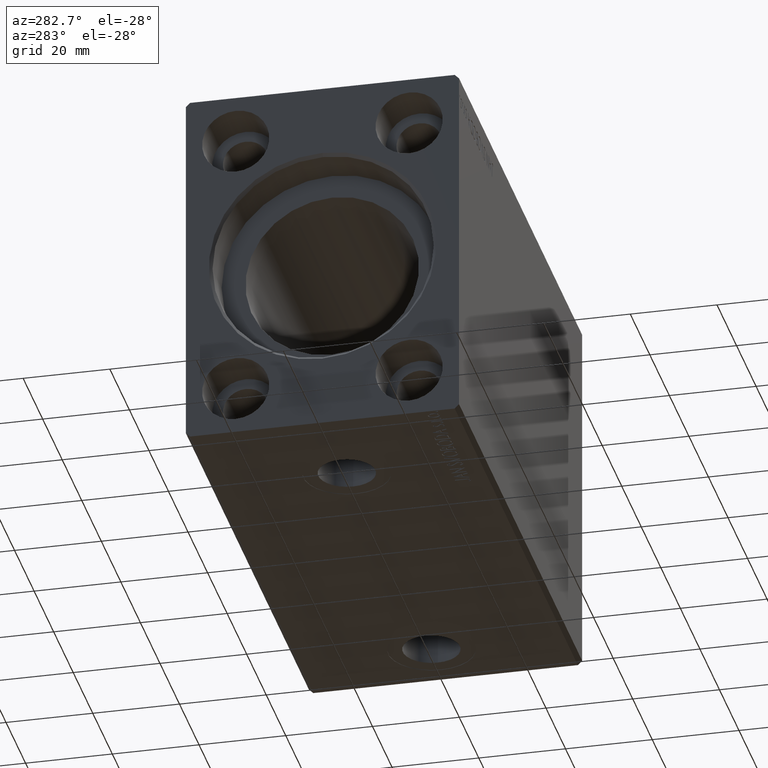
[diagram: clean part render]
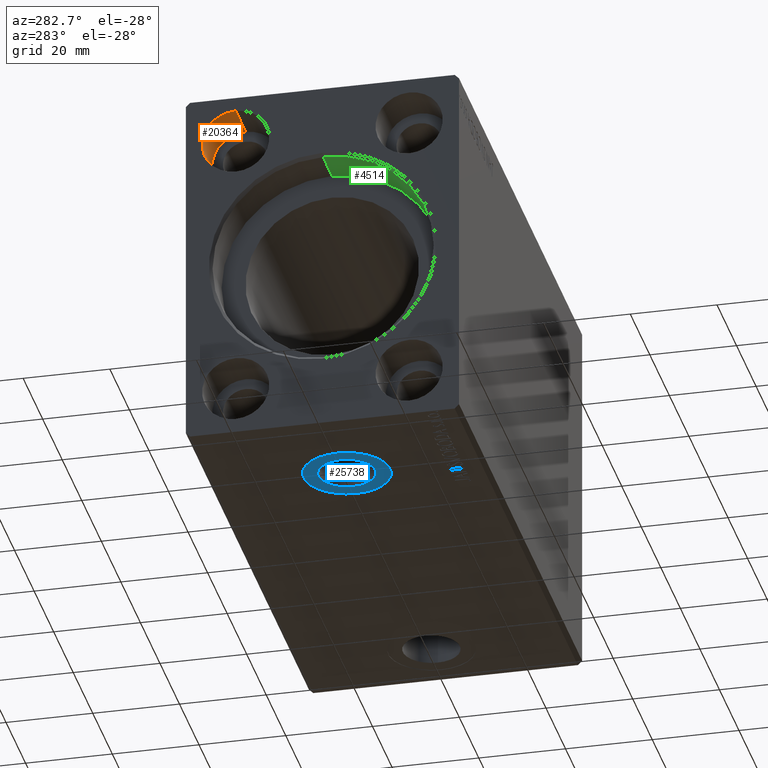
[diagram: same view with three faces highlighted in distinct colors, each labeled with its STEP entity id]
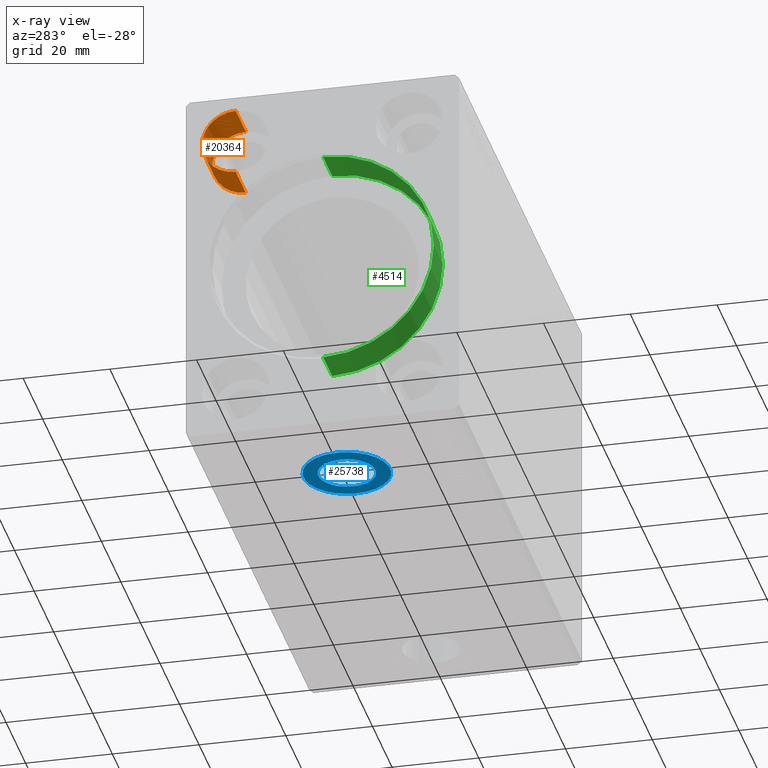
[diagram: x-ray of the same camera — body ghosted, the three highlighted faces saturated]
A machine part, auxiliary view with three faces highlighted in distinct colors.
The next image is the same camera in x-ray (body ghosted, the three faces saturated) — at least one of them is partly hidden behind the body in this view.
Their STEP definitions:

[orange] entity #20364 — the highlighted cylindrical surface (edge-blend (fillet) strip) has radius 7.75 mm, axis along (-1, -0, -0).
#604 = ORIENTED_EDGE ( 'NONE', *, *, #25784, .T. ) ;
#975 = VERTEX_POINT ( 'NONE', #17873 ) ;
#1710 = LINE ( 'NONE', #2130, #22644 ) ;
#2130 = CARTESIAN_POINT ( 'NONE',  ( 10.33000000000000007, 20.00000000000000355, 23.75000000000001421 ) ) ;
#4817 = AXIS2_PLACEMENT_3D ( 'NONE', #4979, #18108, #27995 ) ;
#4979 = CARTESIAN_POINT ( 'NONE',  ( 10.33000000000000007, 20.00000000000000355, 31.50000000000001421 ) ) ;
#6566 = DIRECTION ( 'NONE',  ( 0.000000000000000000, 0.000000000000000000, -1.000000000000000000 ) ) ;
#8561 = DIRECTION ( 'NONE',  ( -1.000000000000000000, -0.000000000000000000, -0.000000000000000000 ) ) ;
#12779 = EDGE_LOOP ( 'NONE', ( #34783, #17154, #604, #23670 ) ) ;
#13463 = CARTESIAN_POINT ( 'NONE',  ( 0.000000000000000000, 20.00000000000000355, 31.50000000000001421 ) ) ;
#14246 = VERTEX_POINT ( 'NONE', #40302 ) ;
#15998 = LINE ( 'NONE', #29115, #29908 ) ;
#17154 = ORIENTED_EDGE ( 'NONE', *, *, #38806, .T. ) ;
#17873 = CARTESIAN_POINT ( 'NONE',  ( 10.33000000000000007, 20.00000000000000355, 23.75000000000001421 ) ) ;
#18108 = DIRECTION ( 'NONE',  ( 1.000000000000000000, -0.000000000000000000, -0.000000000000000000 ) ) ;
#18610 = FACE_OUTER_BOUND ( 'NONE', #12779, .T. ) ;
#20139 = AXIS2_PLACEMENT_3D ( 'NONE', #13463, #36882, #6566 ) ;
#20364 = ADVANCED_FACE ( 'NONE', ( #18610 ), #37953, .F. ) ;
#22644 = VECTOR ( 'NONE', #8561, 1000.000000000000000 ) ;
#23058 = EDGE_CURVE ( 'NONE', #14246, #30752, #41370, .T. ) ;
#23367 = CIRCLE ( 'NONE', #4817, 7.750000000000000000 ) ;
#23670 = ORIENTED_EDGE ( 'NONE', *, *, #23058, .F. ) ;
#25784 = EDGE_CURVE ( 'NONE', #38835, #30752, #15998, .T. ) ;
#26160 = CARTESIAN_POINT ( 'NONE',  ( 0.000000000000000000, 20.00000000000000355, 39.25000000000001421 ) ) ;
#27665 = DIRECTION ( 'NONE',  ( -1.000000000000000000, -0.000000000000000000, -0.000000000000000000 ) ) ;
#27995 = DIRECTION ( 'NONE',  ( 0.000000000000000000, 0.000000000000000000, -1.000000000000000000 ) ) ;
#28075 = DIRECTION ( 'NONE',  ( 0.000000000000000000, 0.000000000000000000, 1.000000000000000000 ) ) ;
#29115 = CARTESIAN_POINT ( 'NONE',  ( 10.33000000000000007, 20.00000000000000355, 39.25000000000001421 ) ) ;
#29908 = VECTOR ( 'NONE', #39192, 1000.000000000000000 ) ;
#30752 = VERTEX_POINT ( 'NONE', #26160 ) ;
#31096 = CARTESIAN_POINT ( 'NONE',  ( 10.33000000000000007, 20.00000000000000355, 31.50000000000001421 ) ) ;
#34783 = ORIENTED_EDGE ( 'NONE', *, *, #36406, .F. ) ;
#36406 = EDGE_CURVE ( 'NONE', #975, #14246, #1710, .T. ) ;
#36551 = AXIS2_PLACEMENT_3D ( 'NONE', #31096, #27665, #28075 ) ;
#36882 = DIRECTION ( 'NONE',  ( 1.000000000000000000, -0.000000000000000000, -0.000000000000000000 ) ) ;
#37953 = CYLINDRICAL_SURFACE ( 'NONE', #36551, 7.750000000000000000 ) ;
#38704 = CARTESIAN_POINT ( 'NONE',  ( 10.33000000000000007, 20.00000000000000355, 39.25000000000001421 ) ) ;
#38806 = EDGE_CURVE ( 'NONE', #975, #38835, #23367, .T. ) ;
#38835 = VERTEX_POINT ( 'NONE', #38704 ) ;
#39192 = DIRECTION ( 'NONE',  ( -1.000000000000000000, -0.000000000000000000, -0.000000000000000000 ) ) ;
#40302 = CARTESIAN_POINT ( 'NONE',  ( 0.000000000000000000, 20.00000000000000355, 23.75000000000001421 ) ) ;
#41370 = CIRCLE ( 'NONE', #20139, 7.750000000000000000 ) ;

[blue] entity #25738 — the highlighted planar face has unit normal (0, 0, -1).
#1135 = CARTESIAN_POINT ( 'NONE',  ( 31.58000000000000540, -1.859936277612589271E-15, -42.40000000000000568 ) ) ;
#1297 = DIRECTION ( 'NONE',  ( -1.000000000000000000, 0.000000000000000000, 0.000000000000000000 ) ) ;
#2022 = DIRECTION ( 'NONE',  ( 0.000000000000000000, 0.000000000000000000, -1.000000000000000000 ) ) ;
#4259 = CARTESIAN_POINT ( 'NONE',  ( 25.00000000000000000, -2.665753871451547918E-15, -42.40000000000000568 ) ) ;
#4820 = DIRECTION ( 'NONE',  ( -1.000000000000000000, 0.000000000000000000, 0.000000000000000000 ) ) ;
#4909 = VERTEX_POINT ( 'NONE', #37512 ) ;
#5078 = ORIENTED_EDGE ( 'NONE', *, *, #12036, .F. ) ;
#5865 = CARTESIAN_POINT ( 'NONE',  ( 0.000000000000000000, 0.000000000000000000, -42.40000000000000568 ) ) ;
#6511 = DIRECTION ( 'NONE',  ( -1.000000000000000000, 0.000000000000000000, -0.000000000000000000 ) ) ;
#10785 = CIRCLE ( 'NONE', #16262, 10.00000000000000000 ) ;
#11332 = DIRECTION ( 'NONE',  ( -1.000000000000000000, 0.000000000000000000, 0.000000000000000000 ) ) ;
#12036 = EDGE_CURVE ( 'NONE', #31621, #31248, #30182, .T. ) ;
#12358 = ORIENTED_EDGE ( 'NONE', *, *, #37555, .F. ) ;
#12697 = AXIS2_PLACEMENT_3D ( 'NONE', #5865, #35766, #6511 ) ;
#13006 = ORIENTED_EDGE ( 'NONE', *, *, #28936, .T. ) ;
#14410 = AXIS2_PLACEMENT_3D ( 'NONE', #38122, #2022, #4820 ) ;
#15780 = PLANE ( 'NONE',  #12697 ) ;
#16262 = AXIS2_PLACEMENT_3D ( 'NONE', #4259, #30067, #11332 ) ;
#22860 = FACE_OUTER_BOUND ( 'NONE', #40893, .T. ) ;
#25168 = DIRECTION ( 'NONE',  ( 0.000000000000000000, 0.000000000000000000, -1.000000000000000000 ) ) ;
#25287 = AXIS2_PLACEMENT_3D ( 'NONE', #34606, #30749, #1297 ) ;
#25738 = ADVANCED_FACE ( 'NONE', ( #26095, #22860 ), #15780, .T. ) ;
#26095 = FACE_BOUND ( 'NONE', #39099, .T. ) ;
#27035 = VERTEX_POINT ( 'NONE', #40683 ) ;
#28079 = ORIENTED_EDGE ( 'NONE', *, *, #32041, .T. ) ;
#28936 = EDGE_CURVE ( 'NONE', #27035, #4909, #10785, .T. ) ;
#29280 = CARTESIAN_POINT ( 'NONE',  ( 18.41999999999999815, -2.665753871451547918E-15, -42.40000000000000568 ) ) ;
#30067 = DIRECTION ( 'NONE',  ( 0.000000000000000000, 0.000000000000000000, -1.000000000000000000 ) ) ;
#30182 = CIRCLE ( 'NONE', #36362, 6.580000000000002736 ) ;
#30222 = CIRCLE ( 'NONE', #14410, 6.580000000000002736 ) ;
#30749 = DIRECTION ( 'NONE',  ( 0.000000000000000000, 0.000000000000000000, -1.000000000000000000 ) ) ;
#31248 = VERTEX_POINT ( 'NONE', #29280 ) ;
#31621 = VERTEX_POINT ( 'NONE', #1135 ) ;
#32041 = EDGE_CURVE ( 'NONE', #4909, #27035, #34226, .T. ) ;
#34226 = CIRCLE ( 'NONE', #25287, 10.00000000000000000 ) ;
#34606 = CARTESIAN_POINT ( 'NONE',  ( 25.00000000000000000, -2.665753871451547918E-15, -42.40000000000000568 ) ) ;
#35766 = DIRECTION ( 'NONE',  ( 0.000000000000000000, 0.000000000000000000, -1.000000000000000000 ) ) ;
#36362 = AXIS2_PLACEMENT_3D ( 'NONE', #40850, #25168, #38264 ) ;
#37512 = CARTESIAN_POINT ( 'NONE',  ( 35.00000000000000000, -1.441107072304194662E-15, -42.40000000000000568 ) ) ;
#37555 = EDGE_CURVE ( 'NONE', #31248, #31621, #30222, .T. ) ;
#38122 = CARTESIAN_POINT ( 'NONE',  ( 25.00000000000000000, -2.665753871451547918E-15, -42.40000000000000568 ) ) ;
#38264 = DIRECTION ( 'NONE',  ( -1.000000000000000000, 0.000000000000000000, 0.000000000000000000 ) ) ;
#39099 = EDGE_LOOP ( 'NONE', ( #12358, #5078 ) ) ;
#40683 = CARTESIAN_POINT ( 'NONE',  ( 15.00000000000000178, -2.665753871451547918E-15, -42.40000000000000568 ) ) ;
#40850 = CARTESIAN_POINT ( 'NONE',  ( 25.00000000000000000, -2.665753871451547918E-15, -42.40000000000000568 ) ) ;
#40893 = EDGE_LOOP ( 'NONE', ( #13006, #28079 ) ) ;

[green] entity #4514 — the highlighted cylindrical surface (partial cylindrical patch) has radius 25.5 mm, axis along (-1, -0, -0).
#344 = DIRECTION ( 'NONE',  ( 0.000000000000000000, 0.000000000000000000, 1.000000000000000000 ) ) ;
#496 = DIRECTION ( 'NONE',  ( -1.000000000000000000, 0.000000000000000000, 0.000000000000000000 ) ) ;
#1308 = FACE_OUTER_BOUND ( 'NONE', #35463, .T. ) ;
#2057 = AXIS2_PLACEMENT_3D ( 'NONE', #16463, #6774, #344 ) ;
#3920 = DIRECTION ( 'NONE',  ( 0.000000000000000000, 0.000000000000000000, -1.000000000000000000 ) ) ;
#4514 = ADVANCED_FACE ( 'NONE', ( #1308 ), #17640, .F. ) ;
#6774 = DIRECTION ( 'NONE',  ( -1.000000000000000000, 0.000000000000000000, 0.000000000000000000 ) ) ;
#7038 = VERTEX_POINT ( 'NONE', #41693 ) ;
#8273 = LINE ( 'NONE', #11494, #38647 ) ;
#9470 = CARTESIAN_POINT ( 'NONE',  ( 0.6999999999999922951, 3.122849337825750222E-15, -25.50000000000000000 ) ) ;
#11494 = CARTESIAN_POINT ( 'NONE',  ( 10.00000000000000000, 0.000000000000000000, 25.50000000000000000 ) ) ;
#11815 = DIRECTION ( 'NONE',  ( -1.000000000000000000, -0.000000000000000000, -0.000000000000000000 ) ) ;
#11924 = VECTOR ( 'NONE', #13614, 1000.000000000000000 ) ;
#13341 = EDGE_CURVE ( 'NONE', #36659, #7038, #36391, .T. ) ;
#13614 = DIRECTION ( 'NONE',  ( -1.000000000000000000, -0.000000000000000000, -0.000000000000000000 ) ) ;
#15006 = AXIS2_PLACEMENT_3D ( 'NONE', #41253, #11815, #24934 ) ;
#16463 = CARTESIAN_POINT ( 'NONE',  ( 10.00000000000000000, 0.000000000000000000, 0.000000000000000000 ) ) ;
#17640 = CYLINDRICAL_SURFACE ( 'NONE', #15006, 25.50000000000000000 ) ;
#17870 = CIRCLE ( 'NONE', #35018, 25.50000000000000000 ) ;
#19751 = VERTEX_POINT ( 'NONE', #37001 ) ;
#20708 = ORIENTED_EDGE ( 'NONE', *, *, #25108, .T. ) ;
#20709 = LINE ( 'NONE', #36399, #11924 ) ;
#21271 = ORIENTED_EDGE ( 'NONE', *, *, #13341, .F. ) ;
#23148 = EDGE_CURVE ( 'NONE', #7038, #19751, #8273, .T. ) ;
#24934 = DIRECTION ( 'NONE',  ( 0.000000000000000000, 0.000000000000000000, 1.000000000000000000 ) ) ;
#25108 = EDGE_CURVE ( 'NONE', #36659, #38877, #20709, .T. ) ;
#30038 = ORIENTED_EDGE ( 'NONE', *, *, #23148, .F. ) ;
#30953 = ORIENTED_EDGE ( 'NONE', *, *, #37757, .T. ) ;
#34091 = DIRECTION ( 'NONE',  ( -1.000000000000000000, -0.000000000000000000, -0.000000000000000000 ) ) ;
#35018 = AXIS2_PLACEMENT_3D ( 'NONE', #37024, #496, #3920 ) ;
#35463 = EDGE_LOOP ( 'NONE', ( #21271, #20708, #30953, #30038 ) ) ;
#36391 = CIRCLE ( 'NONE', #2057, 25.50000000000000000 ) ;
#36399 = CARTESIAN_POINT ( 'NONE',  ( 10.00000000000000000, 3.122849337825750222E-15, -25.50000000000000000 ) ) ;
#36659 = VERTEX_POINT ( 'NONE', #40702 ) ;
#37001 = CARTESIAN_POINT ( 'NONE',  ( 0.6999999999999922951, 0.000000000000000000, 25.50000000000000000 ) ) ;
#37024 = CARTESIAN_POINT ( 'NONE',  ( 0.6999999999999922951, 0.000000000000000000, 0.000000000000000000 ) ) ;
#37757 = EDGE_CURVE ( 'NONE', #38877, #19751, #17870, .T. ) ;
#38647 = VECTOR ( 'NONE', #34091, 1000.000000000000000 ) ;
#38877 = VERTEX_POINT ( 'NONE', #9470 ) ;
#40702 = CARTESIAN_POINT ( 'NONE',  ( 10.00000000000000000, 3.122849337825750222E-15, -25.50000000000000000 ) ) ;
#41253 = CARTESIAN_POINT ( 'NONE',  ( 10.00000000000000000, 0.000000000000000000, 0.000000000000000000 ) ) ;
#41693 = CARTESIAN_POINT ( 'NONE',  ( 10.00000000000000000, 0.000000000000000000, 25.50000000000000000 ) ) ;